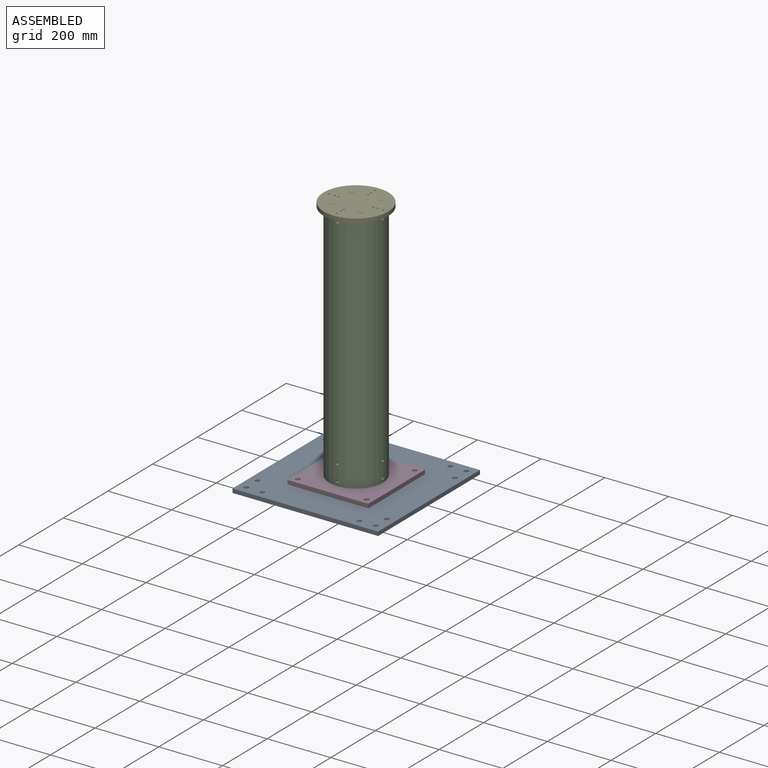
[diagram: assembled view]
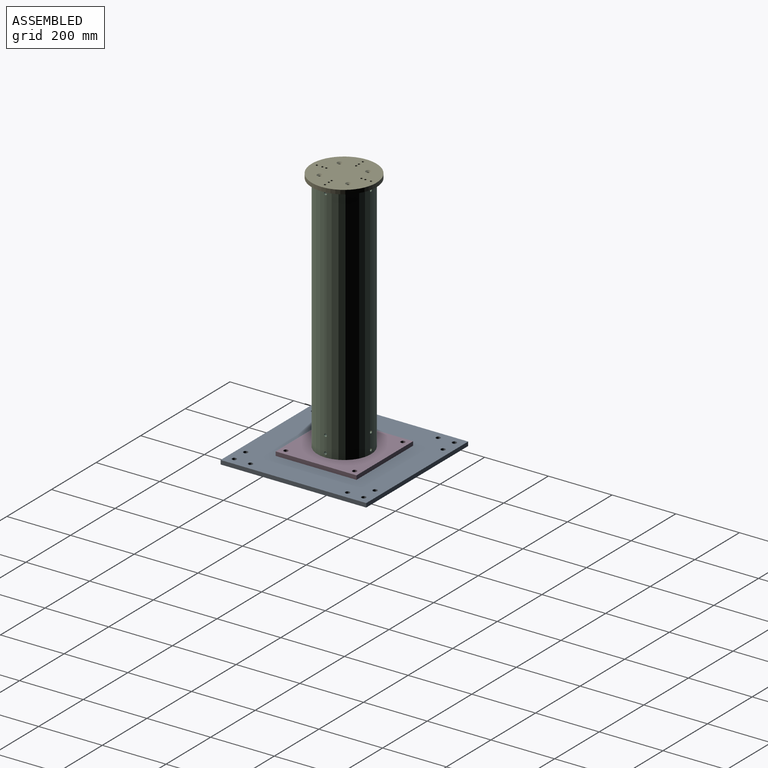
[diagram: assembled view, second angle]
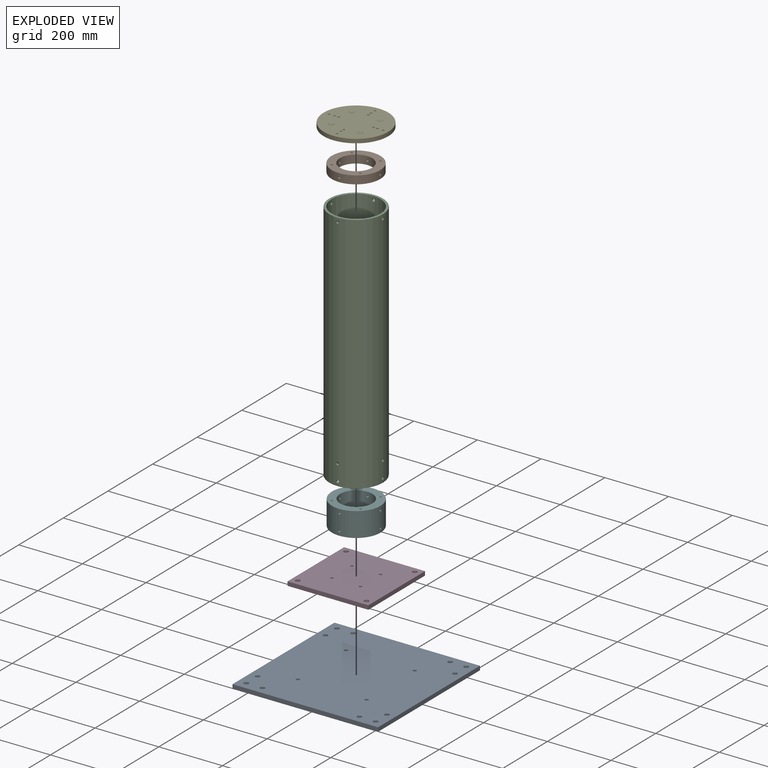
[diagram: exploded view]
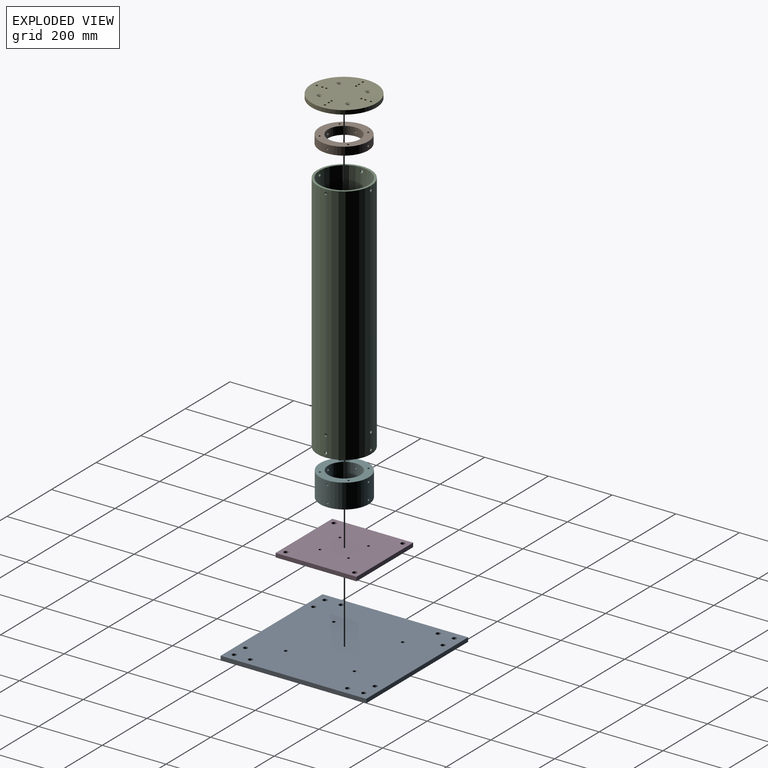
[diagram: exploded view, second angle]
ASSEMBLY  parts=6 mates=5
PART A: 22 faces, bbox 457.2x457.2x12.7 mm
  f0: plane 457.2x12.7mm, normal (0,-1,0), area 5806.4mm2, adj f1,f3,f4,f5
  f1: plane 457.2x12.7mm, normal (-1,0,0), area 5806.4mm2, adj f0,f2,f4,f5
  f2: plane 457.2x12.7mm, normal (0,1,0), area 5806.4mm2, adj f1,f3,f4,f5
  f3: plane 457.2x12.7mm, normal (1,0,0), area 5806.4mm2, adj f0,f2,f4,f5
  f4: plane 457.2x457.2mm, normal (0,0,-1), area 206750.6mm2, adj f0,f1,f2,f3,f6,f7,f8,f9
  f5: plane 457.2x457.2mm, normal (0,0,1), area 206750.6mm2, adj f0,f1,f2,f3,f6,f7,f8,f9
  f6: cylinder r=5.36mm len=12.7mm, axis (0,0,1), area 427.6mm2, adj f4,f5
  f7: cylinder r=5.36mm len=12.7mm, axis (0,0,1), area 427.6mm2, adj f4,f5
  f8: cylinder r=5.36mm len=12.7mm, axis (0,0,1), area 427.6mm2, adj f4,f5
  f9: cylinder r=5.36mm len=12.7mm, axis (0,0,1), area 427.6mm2, adj f4,f5
  f10: cylinder r=7.14mm len=14.27mm, axis (0,0,-1), area 569.5mm2, adj f4,f5
  f11: cylinder r=7.14mm len=14.27mm, axis (0,0,-1), area 569.5mm2, adj f4,f5
  f12: cylinder r=7.14mm len=14.27mm, axis (0,0,-1), area 569.5mm2, adj f4,f5
  f13: cylinder r=7.14mm len=14.27mm, axis (0,0,-1), area 569.5mm2, adj f4,f5
  f14: cylinder r=7.14mm len=14.27mm, axis (0,0,-1), area 569.5mm2, adj f4,f5
  f15: cylinder r=7.14mm len=14.27mm, axis (0,0,-1), area 569.5mm2, adj f4,f5
  f16: cylinder r=7.14mm len=14.27mm, axis (0,0,-1), area 569.5mm2, adj f4,f5
  f17: cylinder r=7.14mm len=14.27mm, axis (0,0,-1), area 569.5mm2, adj f4,f5
  f18: cylinder r=7.14mm len=14.27mm, axis (0,0,-1), area 569.5mm2, adj f4,f5
  f19: cylinder r=7.14mm len=14.27mm, axis (0,0,-1), area 569.5mm2, adj f4,f5
  f20: cylinder r=7.14mm len=14.27mm, axis (0,0,-1), area 569.5mm2, adj f4,f5
  f21: cylinder r=7.14mm len=14.27mm, axis (0,0,-1), area 569.5mm2, adj f4,f5
PART B: 12 faces, bbox 152.4x152.4x25.4 mm
  f0: cylinder r=3.26mm len=25.51mm, axis (1,0,0), area 521.3mm2, adj f3,f4
  f1: cylinder r=3.26mm len=25.51mm, axis (0,-1,0), area 521.3mm2, adj f3,f4
  f2: cylinder r=3.26mm len=25.51mm, axis (-1,0,0), area 521.3mm2, adj f3,f4
  f3: cylinder r=50.8mm len=101.6mm, axis (0,0,1), area 7973.2mm2, adj f0,f1,f2,f5,f6,f7
  f4: cylinder r=76.2mm len=152.4mm, axis (0,0,1), area 12027mm2, adj f0,f1,f2,f5,f6,f7
  f5: plane 152.4x152.4mm, normal (0,0,-1), area 10000.3mm2, adj f3,f4,f8,f9,f10,f11
  f6: plane 152.4x152.4mm, normal (0,0,1), area 10000.3mm2, adj f3,f4,f8,f9,f10,f11
  f7: cylinder r=3.26mm len=25.51mm, axis (0,1,0), area 521.3mm2, adj f3,f4
  f8: cylinder r=3.26mm len=25.4mm, axis (0,0,-1), area 520.9mm2, adj f5,f6
  f9: cylinder r=3.26mm len=25.4mm, axis (0,0,-1), area 520.9mm2, adj f5,f6
  f10: cylinder r=3.26mm len=25.4mm, axis (0,0,-1), area 520.9mm2, adj f5,f6
  f11: cylinder r=3.26mm len=25.4mm, axis (0,0,-1), area 520.9mm2, adj f5,f6
PART C: 16 faces, bbox 168.3x168.3x762 mm
  f0: cylinder r=4.37mm len=8.74mm, axis (1,0,0), area 195.4mm2, adj f7,f8
  f1: cylinder r=4.37mm len=8.74mm, axis (0,-1,0), area 195.4mm2, adj f7,f8
  f2: cylinder r=4.37mm len=8.74mm, axis (-1,0,0), area 195.4mm2, adj f7,f8
  f3: cylinder r=4.37mm len=8.74mm, axis (0,1,0), area 195.4mm2, adj f7,f8
  f4: cylinder r=4.37mm len=8.74mm, axis (-1,0,0), area 195.4mm2, adj f7,f8
  f5: cylinder r=4.37mm len=8.74mm, axis (0,-1,0), area 195.4mm2, adj f7,f8
  f6: cylinder r=4.37mm len=8.74mm, axis (1,0,0), area 195.4mm2, adj f7,f8
  f7: cylinder r=77.03mm len=762mm, axis (0,0,-1), area 368061mm2, adj f0,f1,f2,f3,f4,f5,f6,f9
  f8: cylinder r=84.14mm len=762mm, axis (0,0,-1), area 402111.9mm2, adj f0,f1,f2,f3,f4,f5,f6,f9
  f9: cylinder r=4.37mm len=8.74mm, axis (1,0,0), area 195.4mm2, adj f7,f8
  f10: cylinder r=4.37mm len=8.74mm, axis (0,-1,0), area 195.4mm2, adj f7,f8
  f11: cylinder r=4.37mm len=8.74mm, axis (-1,0,0), area 195.4mm2, adj f7,f8
  f12: plane 168.28x168.28mm, normal (0,0,1), area 3600.9mm2, adj f7,f8
  f13: plane 168.28x168.28mm, normal (0,0,-1), area 3600.9mm2, adj f7,f8
  f14: cylinder r=4.37mm len=8.74mm, axis (0,1,0), area 195.4mm2, adj f7,f8
  f15: cylinder r=4.37mm len=8.74mm, axis (0,1,0), area 195.4mm2, adj f7,f8
PART D: 18 faces, bbox 254x254x12.7 mm
  f0: plane 254x12.7mm, normal (0,1,0), area 3225.8mm2, adj f1,f3,f4,f5
  f1: plane 254x12.7mm, normal (-1,0,0), area 3225.8mm2, adj f0,f2,f4,f5
  f2: plane 254x12.7mm, normal (0,-1,0), area 3225.8mm2, adj f1,f3,f4,f5
  f3: plane 254x12.7mm, normal (1,0,0), area 3225.8mm2, adj f0,f2,f4,f5
  f4: plane 254x254mm, normal (0,0,1), area 63636mm2, adj f0,f1,f2,f3,f6,f8,f10,f12
  f5: plane 254x254mm, normal (0,0,-1), area 63003.6mm2, adj f0,f1,f2,f3,f7,f9,f11,f13
  f6: cylinder r=4.37mm len=8.74mm, axis (0,0,-1), area 223.5mm2, adj f4,f7
  f7: cone r=4.37mm half-angle=41deg, axis (0,0,-1), area 241mm2, adj f5,f6
  f8: cylinder r=4.37mm len=8.74mm, axis (0,0,-1), area 223.5mm2, adj f4,f9
  f9: cone r=4.37mm half-angle=41deg, axis (0,0,-1), area 241mm2, adj f5,f8
  f10: cylinder r=4.37mm len=8.74mm, axis (0,0,-1), area 223.5mm2, adj f4,f11
  f11: cone r=4.37mm half-angle=41deg, axis (0,0,-1), area 241mm2, adj f5,f10
  f12: cylinder r=4.37mm len=8.74mm, axis (0,0,-1), area 223.5mm2, adj f4,f13
  f13: cone r=4.37mm half-angle=41deg, axis (0,0,-1), area 241mm2, adj f5,f12
  f14: cylinder r=7.14mm len=14.28mm, axis (0,0,1), area 569.5mm2, adj f4,f5
  f15: cylinder r=7.14mm len=14.28mm, axis (0,0,1), area 569.5mm2, adj f4,f5
  f16: cylinder r=7.14mm len=14.28mm, axis (0,0,1), area 569.5mm2, adj f4,f5
  f17: cylinder r=7.14mm len=14.28mm, axis (0,0,1), area 569.5mm2, adj f4,f5
PART E: 23 faces, bbox 203.2x203.2x12.7 mm
  f0: plane 203.2x203.2mm, normal (0,0,1), area 31121.3mm2, adj f3,f5,f7,f9,f10,f11,f12,f13
  f1: plane 203.2x203.2mm, normal (0,0,-1), area 31753.6mm2, adj f2,f4,f6,f8,f10,f11,f12,f13
  f2: cylinder r=4.37mm len=8.74mm, axis (0,0,1), area 223.5mm2, adj f1,f3
  f3: cone r=4.37mm half-angle=41deg, axis (0,0,1), area 241mm2, adj f0,f2
  f4: cylinder r=4.37mm len=8.74mm, axis (0,0,1), area 223.5mm2, adj f1,f5
  f5: cone r=4.37mm half-angle=41deg, axis (0,0,1), area 241mm2, adj f0,f4
  f6: cylinder r=4.37mm len=8.74mm, axis (0,0,1), area 223.5mm2, adj f1,f7
  f7: cone r=4.37mm half-angle=41deg, axis (0,0,1), area 241mm2, adj f0,f6
  f8: cylinder r=4.37mm len=8.74mm, axis (0,0,1), area 223.5mm2, adj f1,f9
  f9: cone r=4.37mm half-angle=41deg, axis (0,0,1), area 241mm2, adj f0,f8
  f10: cylinder r=101.6mm len=203.2mm, axis (0,0,1), area 8107.3mm2, adj f0,f1
  f11: cylinder r=3.4mm len=12.7mm, axis (0,0,1), area 271.3mm2, adj f0,f1
  f12: cylinder r=3.4mm len=12.7mm, axis (0,0,1), area 271.3mm2, adj f0,f1
  f13: cylinder r=3.4mm len=12.7mm, axis (0,0,1), area 271.3mm2, adj f0,f1
  f14: cylinder r=3.4mm len=12.7mm, axis (0,0,1), area 271.3mm2, adj f0,f1
  f15: cylinder r=3.4mm len=12.7mm, axis (0,0,1), area 271.3mm2, adj f0,f1
  f16: cylinder r=3.4mm len=12.7mm, axis (0,0,1), area 271.3mm2, adj f0,f1
  f17: cylinder r=3.4mm len=12.7mm, axis (0,0,1), area 271.3mm2, adj f0,f1
  f18: cylinder r=3.4mm len=12.7mm, axis (0,0,1), area 271.3mm2, adj f0,f1
  f19: cylinder r=3.4mm len=12.7mm, axis (0,0,1), area 271.3mm2, adj f0,f1
  f20: cylinder r=3.4mm len=12.7mm, axis (0,0,1), area 271.3mm2, adj f0,f1
  f21: cylinder r=3.4mm len=12.7mm, axis (0,0,1), area 271.3mm2, adj f0,f1
  f22: cylinder r=3.4mm len=12.7mm, axis (0,0,1), area 271.3mm2, adj f0,f1
PART F: 24 faces, bbox 152.4x152.4x76.2 mm
  f0: cylinder r=3.26mm len=25.51mm, axis (1,0,0), area 521.3mm2, adj f7,f8
  f1: cylinder r=3.26mm len=25.51mm, axis (0,-1,0), area 521.3mm2, adj f7,f8
  f2: cylinder r=3.26mm len=25.51mm, axis (-1,0,0), area 521.3mm2, adj f7,f8
  f3: cylinder r=3.26mm len=25.51mm, axis (0,1,0), area 521.3mm2, adj f7,f8
  f4: cylinder r=3.26mm len=25.51mm, axis (1,0,0), area 521.3mm2, adj f7,f8
  f5: cylinder r=3.26mm len=25.51mm, axis (0,-1,0), area 521.3mm2, adj f7,f8
  f6: cylinder r=3.26mm len=25.51mm, axis (-1,0,0), area 521.3mm2, adj f7,f8
  f7: cylinder r=50.8mm len=101.6mm, axis (0,0,-1), area 24053.7mm2, adj f0,f1,f2,f3,f4,f5,f6,f13
  f8: cylinder r=76.2mm len=152.4mm, axis (0,0,-1), area 36215mm2, adj f0,f1,f2,f3,f4,f5,f6,f13
  f9: cone r=0mm half-angle=59deg, axis (0,0,-1), area 30.9mm2, adj f15,f22
  f10: cone r=0mm half-angle=59deg, axis (0,0,-1), area 30.9mm2, adj f16,f21
  f11: cone r=0mm half-angle=59deg, axis (0,0,-1), area 30.9mm2, adj f17,f20
  f12: cone r=0mm half-angle=59deg, axis (0,0,-1), area 30.9mm2, adj f18,f19
  f13: plane 152.4x152.4mm, normal (0,0,1), area 10000.3mm2, adj f7,f8,f19,f20,f21,f22
  f14: plane 152.4x152.4mm, normal (0,0,-1), area 9894.3mm2, adj f7,f8,f15,f16,f17,f18
  f15: cylinder r=4.37mm len=50.8mm, axis (0,0,-1), area 1394.5mm2, adj f9,f14
  f16: cylinder r=4.37mm len=50.8mm, axis (0,0,-1), area 1394.5mm2, adj f10,f14
  f17: cylinder r=4.37mm len=50.8mm, axis (0,0,-1), area 1394.5mm2, adj f11,f14
  f18: cylinder r=4.37mm len=50.8mm, axis (0,0,-1), area 1394.5mm2, adj f12,f14
  f19: cylinder r=3.26mm len=24.74mm, axis (0,0,1), area 507.3mm2, adj f12,f13
  f20: cylinder r=3.26mm len=24.74mm, axis (0,0,1), area 507.3mm2, adj f11,f13
  f21: cylinder r=3.26mm len=24.74mm, axis (0,0,1), area 507.3mm2, adj f10,f13
  f22: cylinder r=3.26mm len=24.74mm, axis (0,0,1), area 507.3mm2, adj f9,f13
  f23: cylinder r=3.26mm len=25.51mm, axis (0,1,0), area 521.3mm2, adj f7,f8
PLACE A at identity
PLACE B t=(0,-1.01,0)mm
PLACE C t=(0,-0.5,0)mm
PLACE D at identity
PLACE E t=(-299.72,-1.01,0)mm
PLACE F at identity
MATE fastened A.f5 <-> D.f5  axis (0,0,1) through (0,0,0)mm
MATE fastened C.f3 <-> F.f3  axis (0,1,0) through (0,76.35,76.2)mm
MATE fastened B.f1 <-> C.f5  axis (0,-1,0) through (0,-77.36,762)mm
MATE fastened F.f12 <-> D.f8  axis (0,0,-1) through (-44.9,44.9,12.7)mm
MATE fastened E.f6 <-> B.f11  axis (0,0,-1) through (-44.9,43.9,774.7)mm
